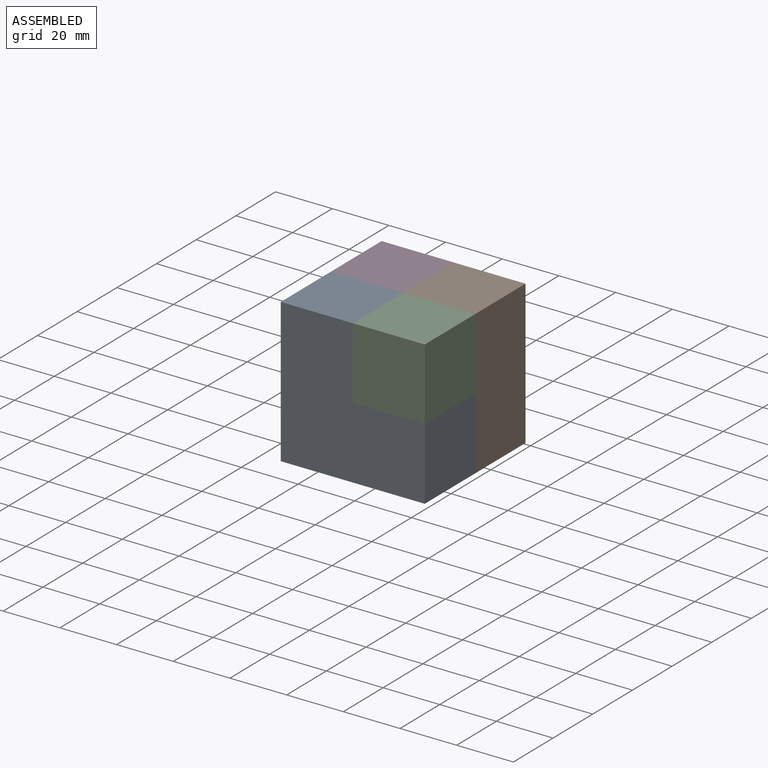
[diagram: assembled view]
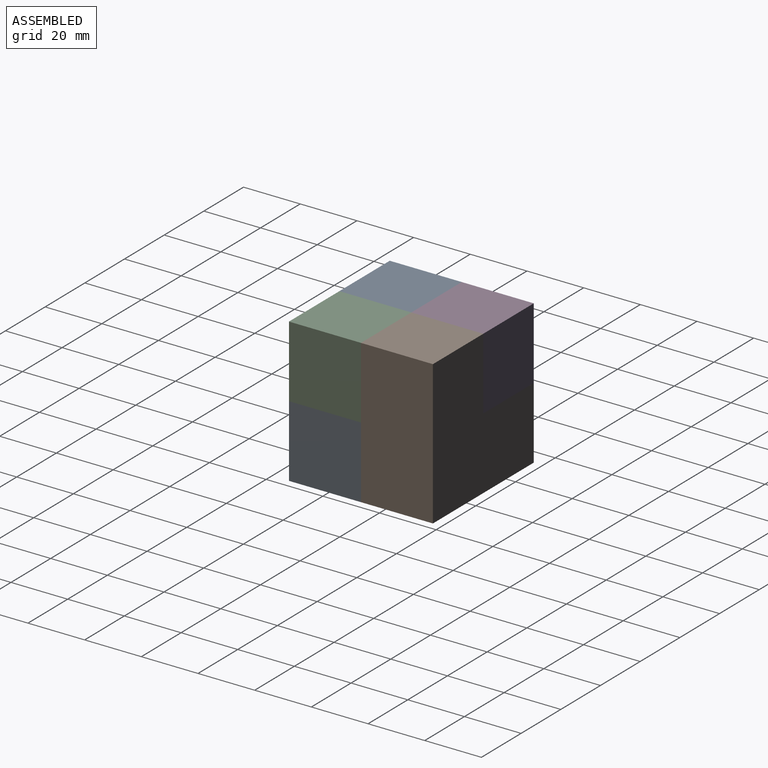
[diagram: assembled view, second angle]
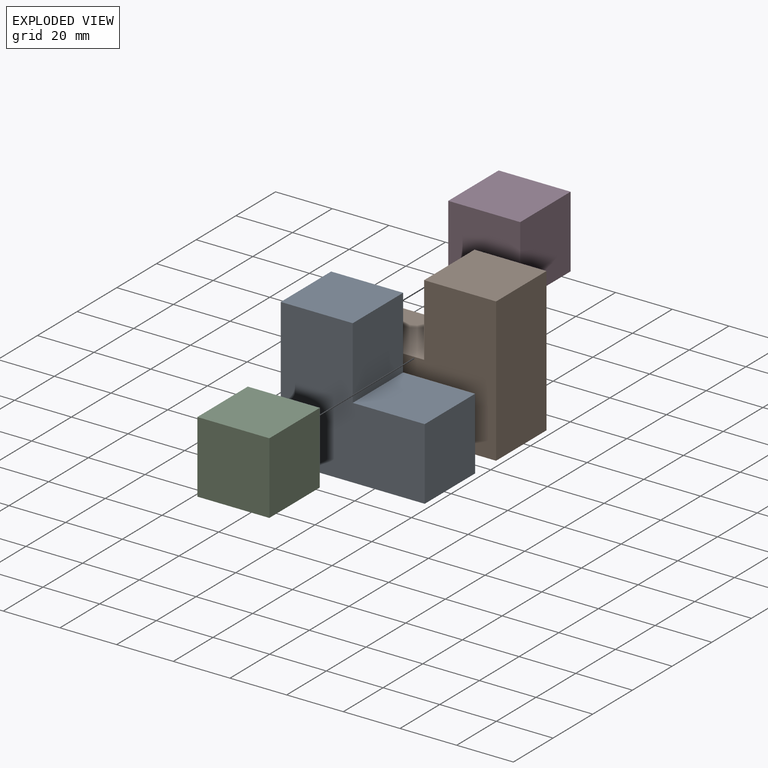
[diagram: exploded view]
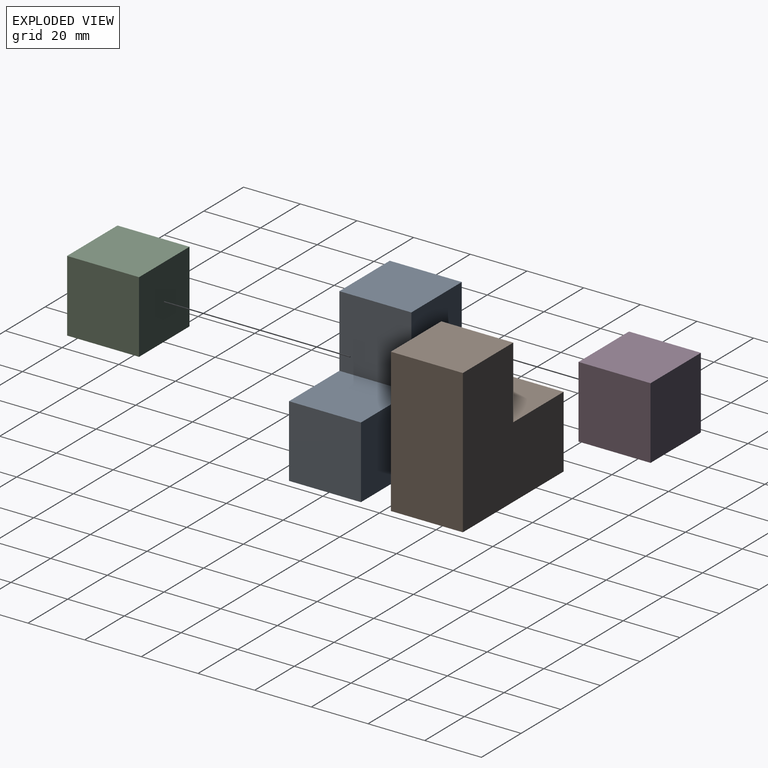
[diagram: exploded view, second angle]
ASSEMBLY  parts=4 mates=3
PART A: 8 faces, bbox 50.8x25.4x50.8 mm
  f0: plane 25.4x25.4mm, normal (0,0,1), area 645.2mm2, adj f1,f5,f6,f7
  f1: plane 25.4x25.4mm, normal (-1,0,0), area 645.2mm2, adj f0,f2,f6,f7
  f2: plane 50.8x25.4mm, normal (0,0,-1), area 1290.3mm2, adj f1,f3,f6,f7
  f3: plane 50.8x25.4mm, normal (1,0,0), area 1290.3mm2, adj f2,f4,f6,f7
  f4: plane 25.4x25.4mm, normal (0,0,1), area 645.2mm2, adj f3,f5,f6,f7
  f5: plane 25.4x25.4mm, normal (-1,0,0), area 645.2mm2, adj f0,f4,f6,f7
  f6: plane 50.8x50.8mm, normal (0,-1,0), area 1935.5mm2, adj f0,f1,f2,f3,f4,f5
  f7: plane 50.8x50.8mm, normal (0,1,0), area 1935.5mm2, adj f0,f1,f2,f3,f4,f5
PART B: same geometry as A
PART C: 6 faces, bbox 25.4x25.4x25.4 mm
  f0: plane 25.4x25.4mm, normal (-1,0,0), area 645.2mm2, adj f1,f3,f4,f5
  f1: plane 25.4x25.4mm, normal (0,0,-1), area 645.2mm2, adj f0,f2,f4,f5
  f2: plane 25.4x25.4mm, normal (1,0,0), area 645.2mm2, adj f1,f3,f4,f5
  f3: plane 25.4x25.4mm, normal (0,0,1), area 645.2mm2, adj f0,f2,f4,f5
  f4: plane 25.4x25.4mm, normal (0,-1,0), area 645.2mm2, adj f0,f1,f2,f3
  f5: plane 25.4x25.4mm, normal (0,1,0), area 645.2mm2, adj f0,f1,f2,f3
PART D: same geometry as C
PLACE A rot(axis=(0,1,0),90deg) t=(48.56,-6.97,-12.32)mm
PLACE B t=(99.36,18.43,-12.32)mm
PLACE C rot(axis=(0,1,0),90deg) t=(73.96,-6.97,13.08)mm
PLACE D t=(73.96,18.43,13.08)mm
MATE fastened B.f6 <-> A.f7  axis (0,-1,0) through (73.96,-6.97,13.08)mm
MATE fastened D.f4 <-> B.f6  axis (0,-1,0) through (48.56,-6.97,13.08)mm
MATE fastened C.f4 <-> A.f6  axis (0,-1,0) through (73.96,-32.37,38.48)mm
